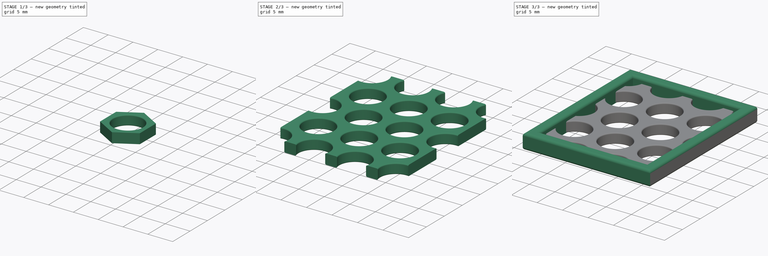
[diagram: build sequence overview — one tinted view per stage of 3, left to right]
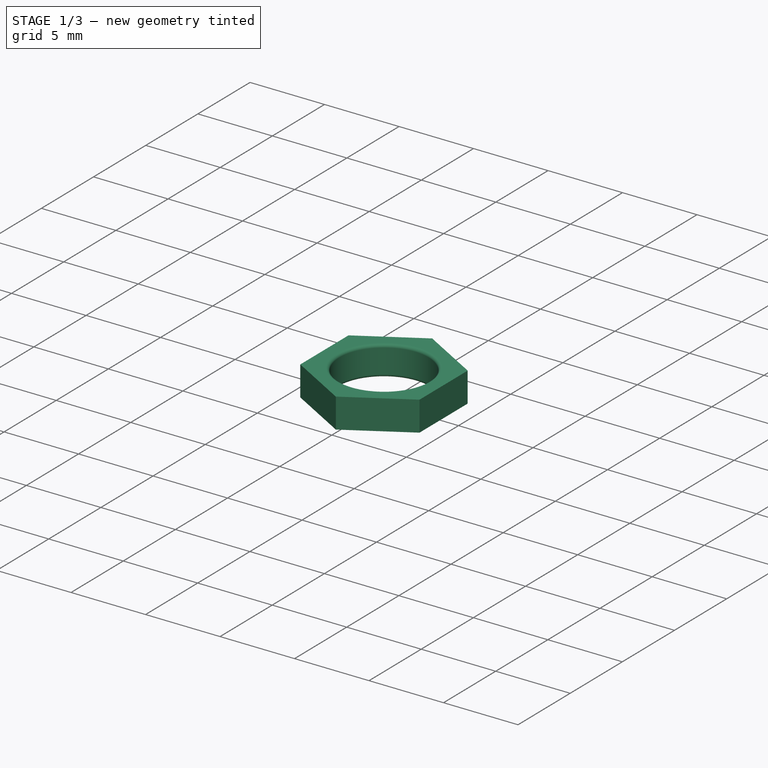
[diagram: stage 1 of 3 — iso view after this stage's code; geometry added in this stage tinted green]
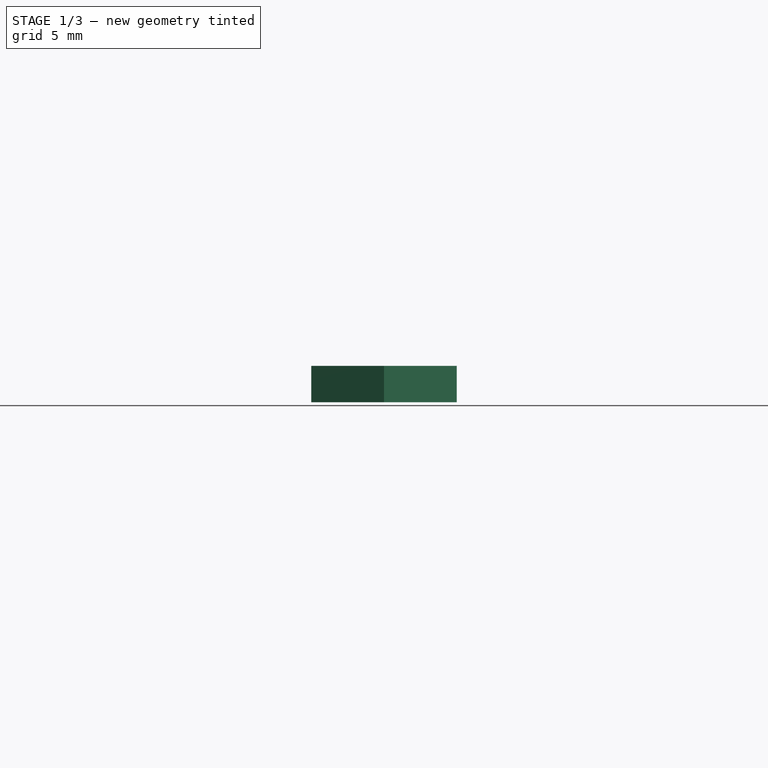
[diagram: stage 1 of 3 — front view after this stage's code; geometry added in this stage tinted green]
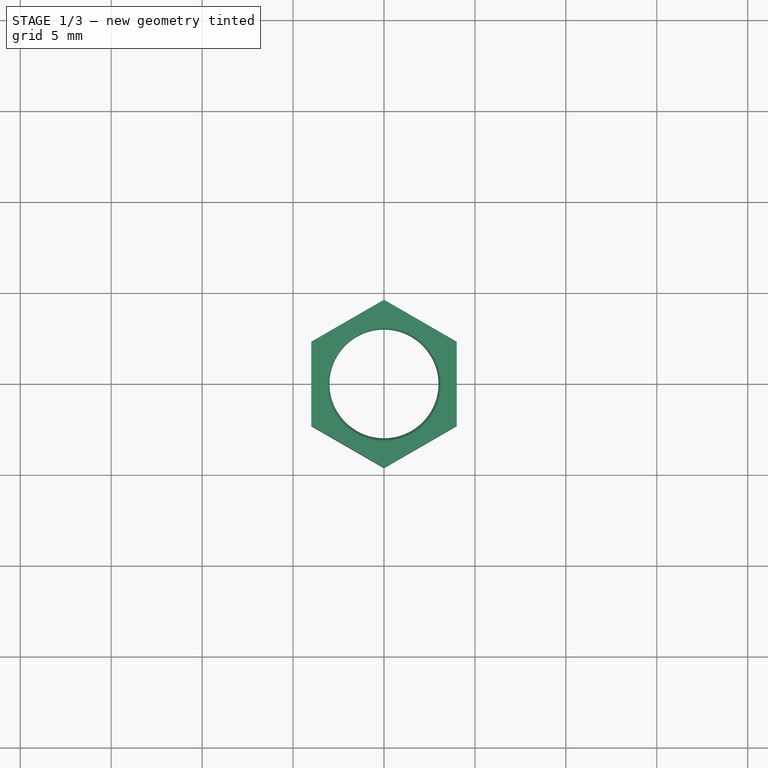
[diagram: stage 1 of 3 — top view after this stage's code; geometry added in this stage tinted green]
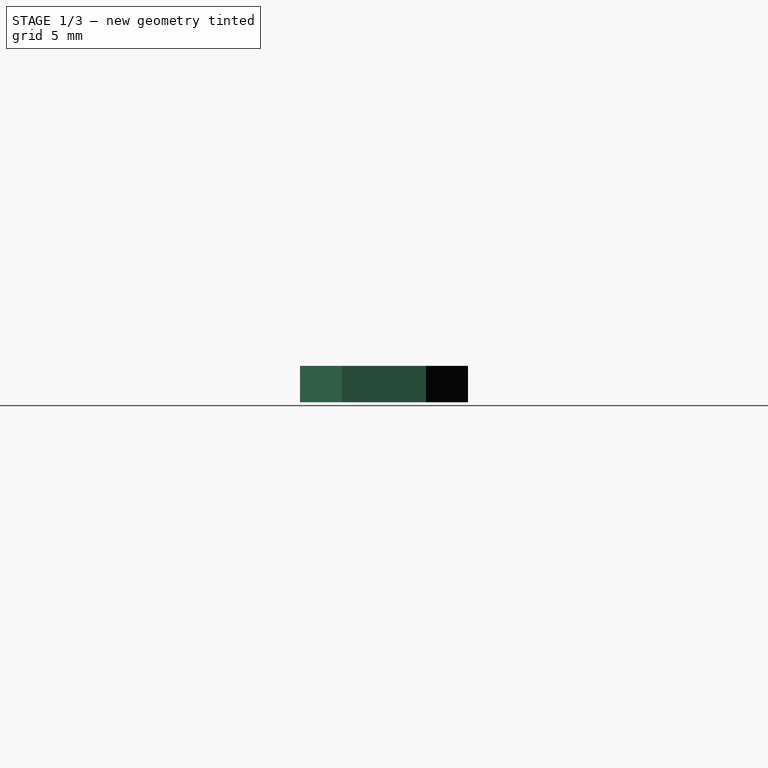
[diagram: stage 1 of 3 — right view after this stage's code; geometry added in this stage tinted green]
FCSTD DOCUMENT  (FreeCAD 0.20R27319 (Git))
Label: Failed Intersection_SHALM_fixed
License: All rights reserved
LicenseURL: http://en.wikipedia.org/wiki/All_rights_reserved
objects: Sketcher::SketchObject×3, PartDesign::Pad×2, PartDesign::Fillet×2, PartDesign::LinearPattern×2, Spreadsheet::Sheet×1, PartDesign::Mirrored×1, PartDesign::MultiTransform×1, PartDesign::Pocket×1, PartDesign::Body×1
note: 18 computed .brp shape members not serialized (recipe doc carries the construction recipe); baked Part::Feature solids carry a one-line shape summary decoded from their .brp

FEATURE [Spreadsheet::Sheet] Spreadsheet
  cells = A1=ControlDimension; B1(ControlDimension)=8; A2=X_Repeat; B2(X_Repeat)=5; A3=Y_Repeat; B3(Y_Repeat)=3; A4=Wall Thickness; B4(WallThickness)=2; A5=FilletSize; B5(FilletSize)=4; A6=Thickness; B6(Thickness)=3
FEATURE [Sketcher::SketchObject] Sketch001
  FullyConstrained = true
  MapMode = 5
  Support = -> [XY_Plane001]
  expr: Constraints[19] = Spreadsheet.ControlDimension
  expr: Constraints[26] = Spreadsheet.WallThickness / 2
  sketch-geometry (10):
    g0: LineSegment StartX=4 StartY=-2.3094 StartZ=0 EndX=4 EndY=2.3094 EndZ=0
    g1: LineSegment StartX=4 StartY=2.3094 StartZ=0 EndX=0 EndY=4.6188 EndZ=0
    g2: LineSegment StartX=0 StartY=4.6188 StartZ=0 EndX=-4 EndY=2.3094 EndZ=0
    g3: LineSegment StartX=-4 StartY=2.3094 StartZ=0 EndX=-4 EndY=-2.3094 EndZ=0
    g4: LineSegment StartX=-4 StartY=-2.3094 StartZ=0 EndX=0 EndY=-4.6188 EndZ=0
    g5: LineSegment StartX=0 StartY=-4.6188 StartZ=0 EndX=4 EndY=-2.3094 EndZ=0
    g6: Circle CenterX=0 CenterY=0 CenterZ=0 NormalX=0 NormalY=0 NormalZ=1 AngleXU=0 Radius=4.6188
    g7: Circle CenterX=0 CenterY=0 CenterZ=0 NormalX=0 NormalY=0 NormalZ=1 AngleXU=0 Radius=3
    g8: LineSegment StartX=0 StartY=0 StartZ=0 EndX=2 EndY=3.4641 EndZ=0
    g9: GeomPoint X=3 Y=0 Z=0
  constraints (26):
    c: Coincident(g0,g1)
    c: Coincident(g1,g2)
    c: Coincident(g2,g3)
    c: Coincident(g3,g4)
    c: Coincident(g4,g5)
    c: Coincident(g5,g0)
    c: Equal(g0, g1-g5) x5
    c: PointOnObject(g0,g6)
    c: PointOnObject(g1,g6)
    c: PointOnObject(g2,g6)
    c: PointOnObject(g3,g6)
    c: PointOnObject(g4,g6)
    c: PointOnObject(g5,g6)
    c: Coincident(g6,g-1)
    c: PointOnObject(g1,g-2)
    c: DistanceX(g2,g0) = 8
    c: Coincident(g7,g6)
    c: Coincident(g8,g7)
    c: PointOnObject(g8,g1)
    c: Perpendicular(g8,g1)
    c: PointOnObject(g9,g7)
    c: PointOnObject(g9,g-1)
    c: Distance(g9,g0) = 1
    c: DistanceY(g3,g1) = 6.9282
    c: DistanceY(g2) = 2.3094
    c: DistanceY(g2,g1) = 2.3094
FEATURE [PartDesign::Pad] Pad001  label="Hex Basic"
  Direction = (0,0,1)
  Length = 2
  Length2 = 10
  Profile = -> Sketch001
  ReferenceAxis = -> Sketch001 [N_Axis]
  Type = 0
  expr: Length = Spreadsheet.Thickness - 1
FEATURE [PartDesign::Fillet] Fillet  label="Hex Filleted"
  Base = -> Pad001 [Edge20,Edge21]
  BaseFeature = -> Pad001
  Radius = 0.2
  SupportTransform = false
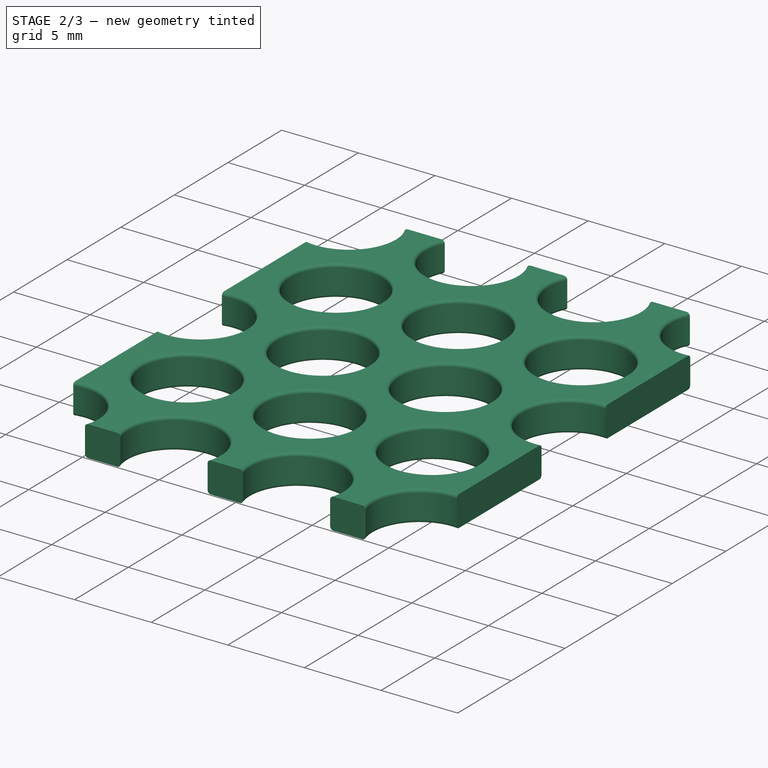
[diagram: stage 2 of 3 — iso view after this stage's code; geometry added in this stage tinted green]
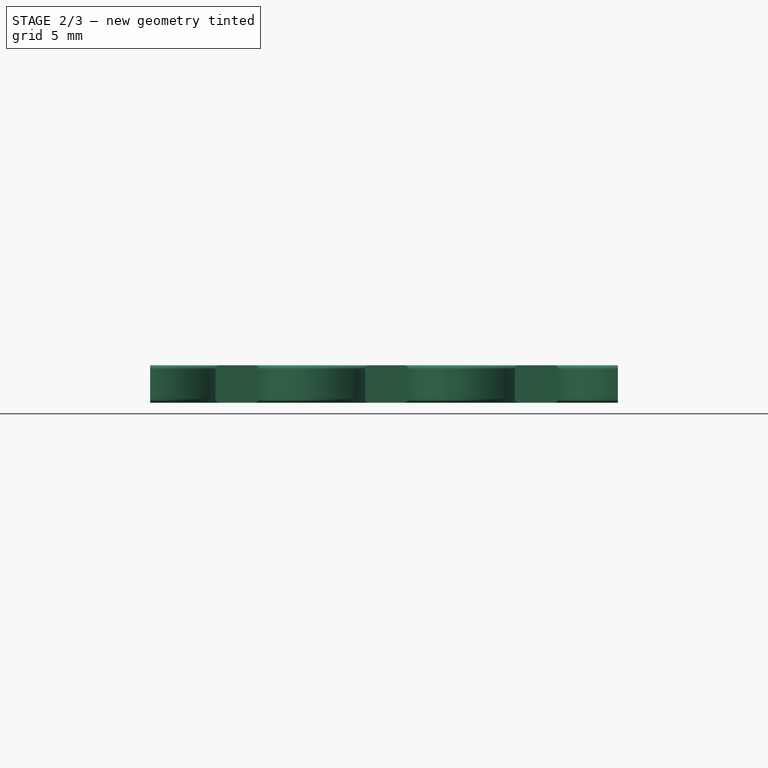
[diagram: stage 2 of 3 — front view after this stage's code; geometry added in this stage tinted green]
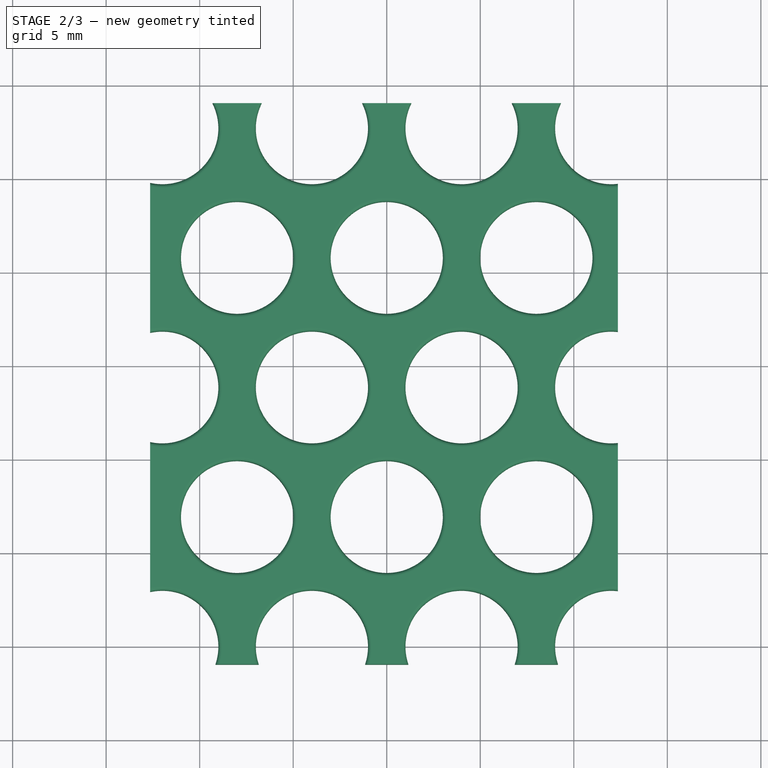
[diagram: stage 2 of 3 — top view after this stage's code; geometry added in this stage tinted green]
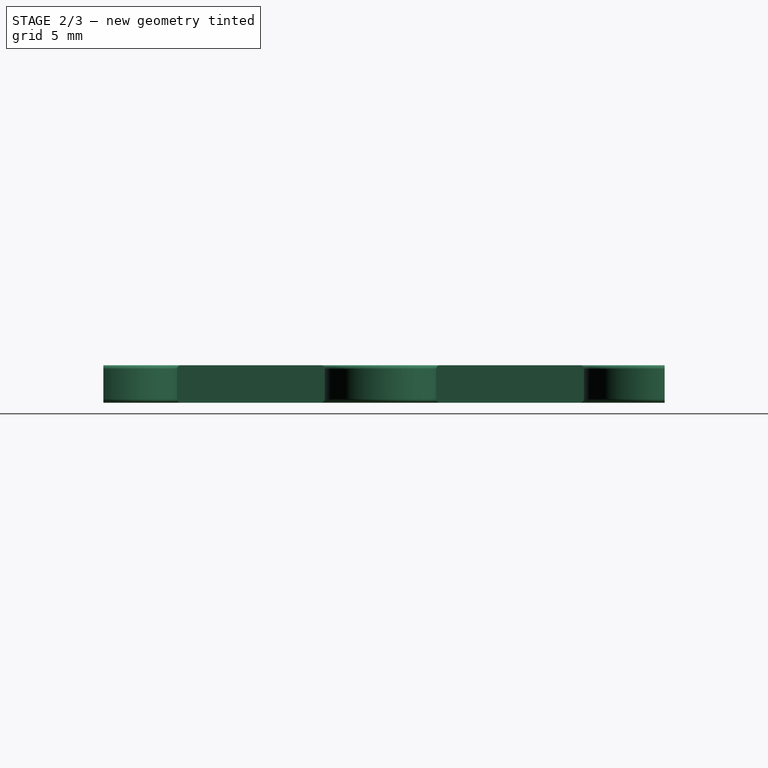
[diagram: stage 2 of 3 — right view after this stage's code; geometry added in this stage tinted green]
FEATURE [Sketcher::SketchObject] Sketch003
  FullyConstrained = false
  MapMode = 5
  Support = -> [XY_Plane001]
  sketch-geometry (10):
    g0: LineSegment StartX=7.3536 StartY=-0.953285 StartZ=0 EndX=7.3536 EndY=29.0467 EndZ=0
    g1: LineSegment StartX=7.3536 StartY=29.0467 StartZ=0 EndX=32.3536 EndY=29.0467 EndZ=0
    g2: LineSegment StartX=32.3536 StartY=29.0467 StartZ=0 EndX=32.3536 EndY=-0.953285 EndZ=0
    g3: LineSegment StartX=32.3536 StartY=-0.953285 StartZ=0 EndX=7.3536 EndY=-0.953285 EndZ=0
    g4: GeomPoint X=19.8536 Y=14.0467 Z=0
    g5: LineSegment StartX=-9.97198 StartY=41.0423 StartZ=0 EndX=-9.97198 EndY=-12.9488 EndZ=0
    g6: LineSegment StartX=-9.97198 StartY=-12.9488 StartZ=0 EndX=49.6792 EndY=-12.9488 EndZ=0
    g7: LineSegment StartX=49.6792 StartY=-12.9488 StartZ=0 EndX=49.6792 EndY=41.0423 EndZ=0
    g8: LineSegment StartX=49.6792 StartY=41.0423 StartZ=0 EndX=-9.97198 EndY=41.0423 EndZ=0
    g9: GeomPoint X=19.8536 Y=14.0467 Z=0
  constraints (21):
    c: Coincident(g0,g1)
    c: Coincident(g1,g2)
    c: Coincident(g2,g3)
    c: Coincident(g3,g0)
    c: Horizontal(g1)
    c: Horizontal(g3)
    c: Vertical(g0)
    c: Vertical(g2)
    c: Symmetric(g1,g0,g4)
    c: Distance(g1) = 25
    c: Distance(g2) = 30
    c: Coincident(g5,g6)
    c: Coincident(g6,g7)
    c: Coincident(g7,g8)
    c: Coincident(g8,g5)
    c: Horizontal(g6)
    c: Horizontal(g8)
    c: Vertical(g5)
    c: Vertical(g7)
    c: Symmetric(g6,g5,g9)
    c: Coincident(g9,g4)
FEATURE [Sketcher::SketchObject] Sketch
  ExternalGeometry = -> [Sketch003]
  FullyConstrained = true
  MapMode = 5
  Support = -> [XY_Plane001]
  sketch-geometry (10):
    g0: LineSegment StartX=7.3536 StartY=-0.953285 StartZ=0 EndX=7.3536 EndY=29.0467 EndZ=0
    g1: LineSegment StartX=7.3536 StartY=29.0467 StartZ=0 EndX=32.3536 EndY=29.0467 EndZ=0
    g2: LineSegment StartX=32.3536 StartY=29.0467 StartZ=0 EndX=32.3536 EndY=-0.953285 EndZ=0
    g3: LineSegment StartX=32.3536 StartY=-0.953285 StartZ=0 EndX=7.3536 EndY=-0.953285 EndZ=0
    g4: GeomPoint X=19.8536 Y=14.0467 Z=0
    g5: LineSegment StartX=9.3536 StartY=27.0467 StartZ=0 EndX=9.3536 EndY=1.04671 EndZ=0
    g6: LineSegment StartX=9.3536 StartY=1.04671 StartZ=0 EndX=30.3536 EndY=1.04671 EndZ=0
    g7: LineSegment StartX=30.3536 StartY=1.04671 StartZ=0 EndX=30.3536 EndY=27.0467 EndZ=0
    g8: LineSegment StartX=30.3536 StartY=27.0467 StartZ=0 EndX=9.3536 EndY=27.0467 EndZ=0
    g9: GeomPoint X=19.8536 Y=14.0467 Z=0
  constraints (23):
    c: Coincident(g0,g1)
    c: Coincident(g1,g2)
    c: Coincident(g2,g3)
    c: Coincident(g3,g0)
    c: Horizontal(g1)
    c: Horizontal(g3)
    c: Vertical(g0)
    c: Vertical(g2)
    c: Symmetric(g1,g0,g4)
    c: Coincident(g1,g-3)
    c: Coincident(g0,g-4)
    c: Coincident(g5,g6)
    c: Coincident(g6,g7)
    c: Coincident(g7,g8)
    c: Coincident(g8,g5)
    c: Horizontal(g6)
    c: Horizontal(g8)
    c: Vertical(g5)
    c: Vertical(g7)
    c: Symmetric(g6,g5,g9)
    c: Coincident(g9,g4)
    c: DistanceX(g6,g2) = 2
    c: DistanceY(g2,g6) = 2
FEATURE [PartDesign::LinearPattern] LinearPattern
  Direction = -> X_Axis001
  Length = 32
  Occurrences = 5
  Overlap = 0
  expr: Length = Spreadsheet.ControlDimension * (Spreadsheet.X_Repeat - 1)
  expr: Occurrences = Spreadsheet.X_Repeat
FEATURE [PartDesign::LinearPattern] LinearPattern001
  Direction = -> Y_Axis001
  Length = 27.7128
  Occurrences = 3
  Overlap = 0
  expr: Length = Spreadsheet.ControlDimension * tan(60) * (Spreadsheet.Y_Repeat - 1)
  expr: Occurrences = Spreadsheet.Y_Repeat
FEATURE [PartDesign::Mirrored] Mirrored
  MirrorPlane = -> Fillet [Face11]
  Overlap = 0
FEATURE [PartDesign::MultiTransform] MultiTransform  label="Hex Array"
  BaseFeature = -> Fillet
  Originals = -> [Pad001,Fillet]
  Overlap = 0
  Transformations = -> [Mirrored,LinearPattern,LinearPattern001]
FEATURE [PartDesign::Pocket] Pocket
  BaseFeature = -> MultiTransform
  Direction = (0,0,-1)
  Length = 5
  Length2 = 5
  Profile = -> Sketch003
  ReferenceAxis = -> Sketch003 [N_Axis]
  Reversed = true
  Type = 1
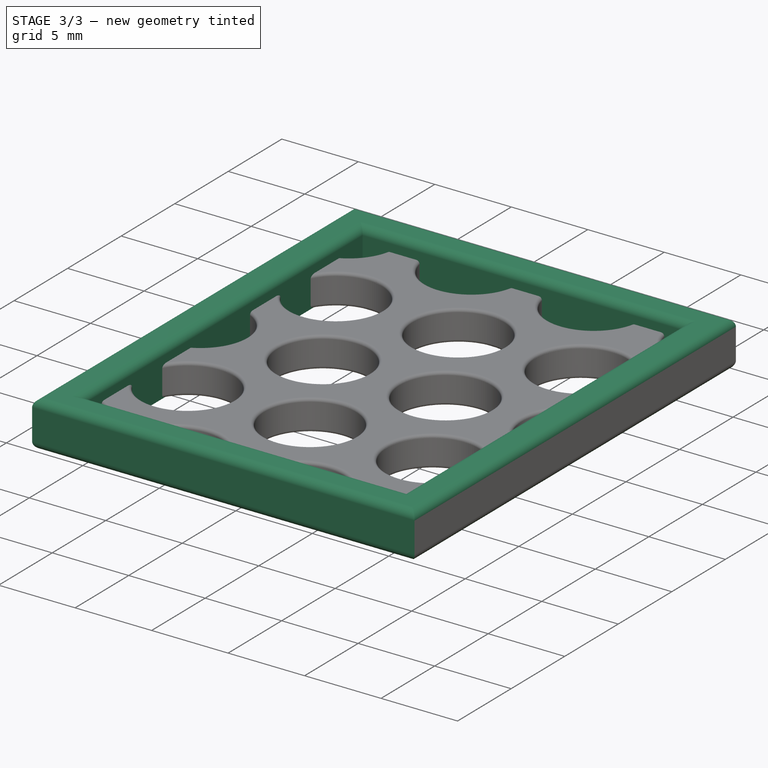
[diagram: stage 3 of 3 — iso view after this stage's code; geometry added in this stage tinted green]
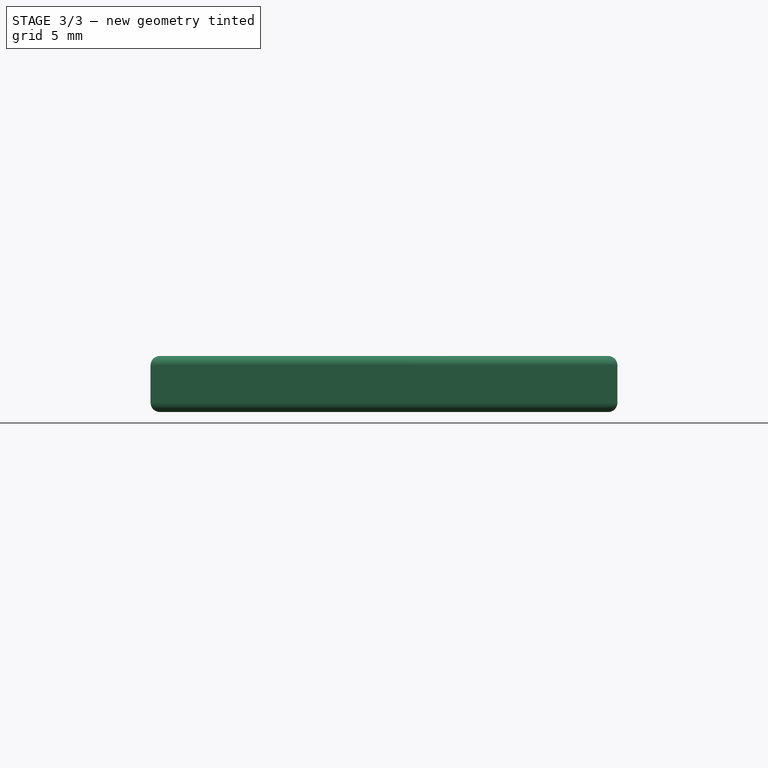
[diagram: stage 3 of 3 — front view after this stage's code; geometry added in this stage tinted green]
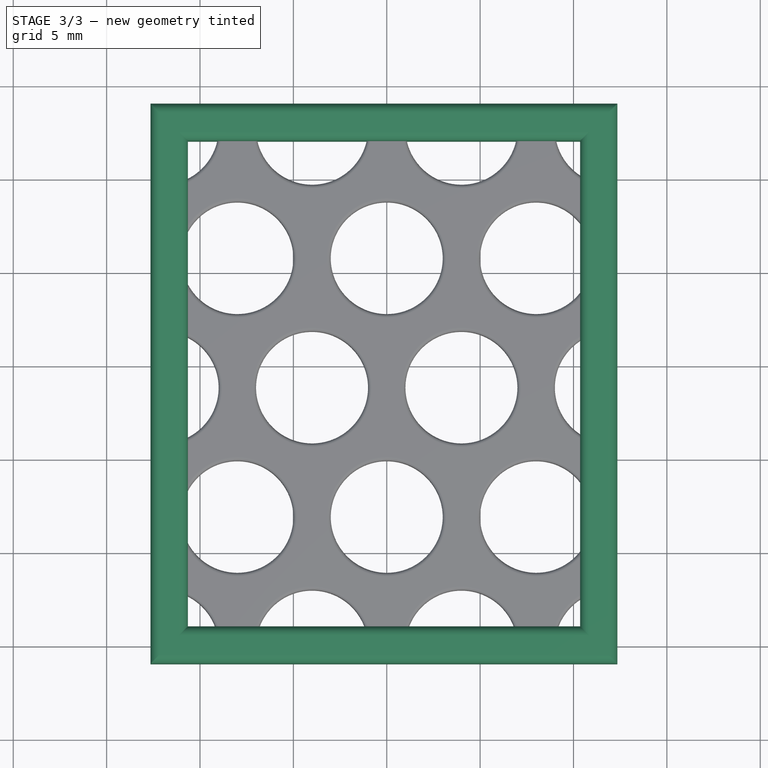
[diagram: stage 3 of 3 — top view after this stage's code; geometry added in this stage tinted green]
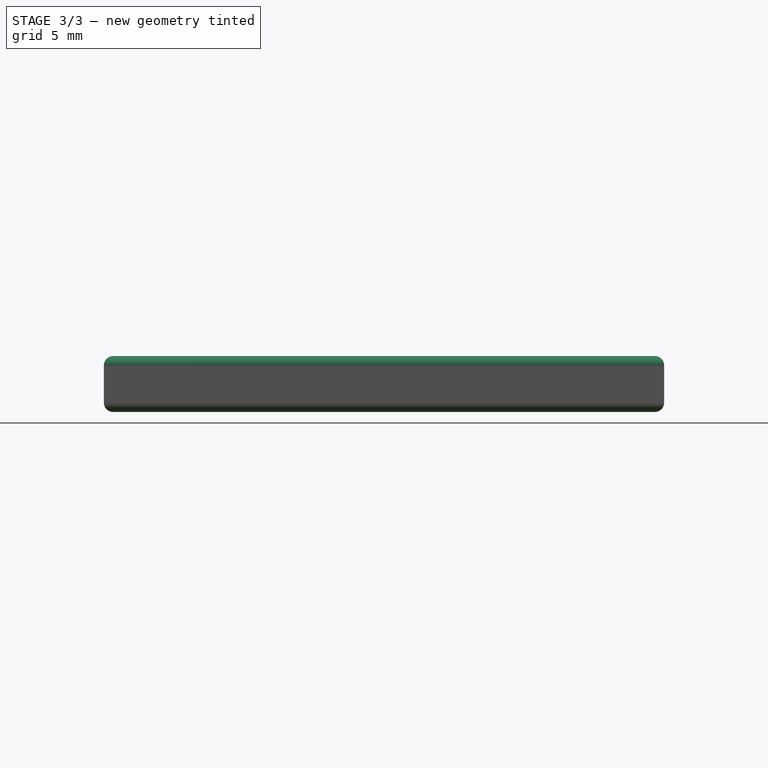
[diagram: stage 3 of 3 — right view after this stage's code; geometry added in this stage tinted green]
FEATURE [PartDesign::Pad] Pad
  BaseFeature = -> Pocket
  Direction = (0,0,1)
  Length = 3
  Length2 = 10
  Profile = -> Sketch
  ReferenceAxis = -> Sketch [N_Axis]
  Refine = true
  Type = 0
  expr: Length = Spreadsheet.Thickness
FEATURE [PartDesign::Fillet] Fillet001
  Base = -> Pad [Edge9,Edge8,Edge11,Edge10,Face17]
  BaseFeature = -> Pad
  Radius = 0.5
  SupportTransform = false
FEATURE [PartDesign::Body] Body001  label="Hex"
  Group = -> [Sketch001,Pad001,Fillet,MultiTransform,Sketch003,Sketch,Mirrored,LinearPattern,LinearPattern001,Pocket,Pad,Fillet001]
  Origin = -> Origin001
  Tip = -> Fillet001
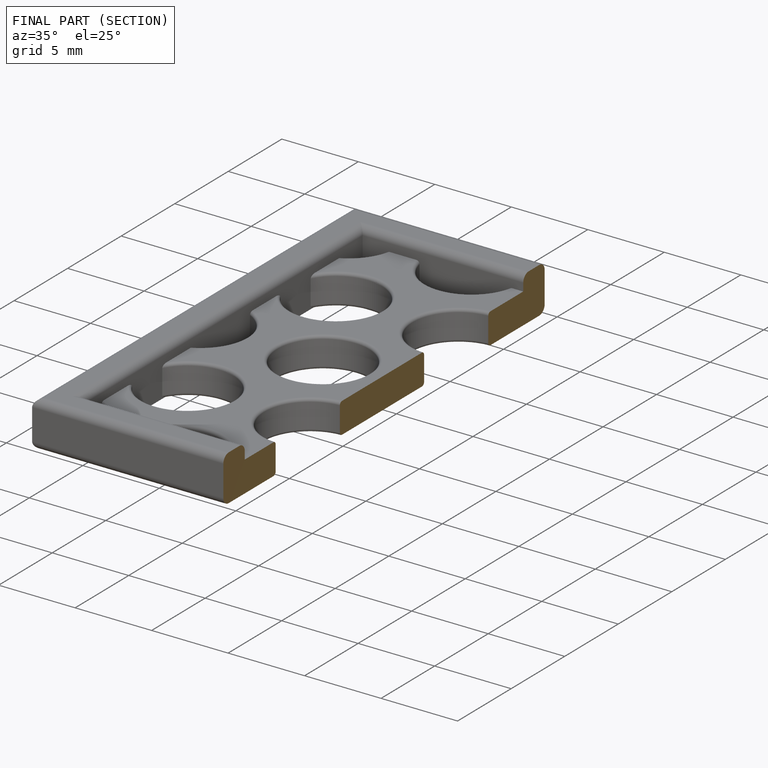
[diagram: finished part — half-section view (interior)]
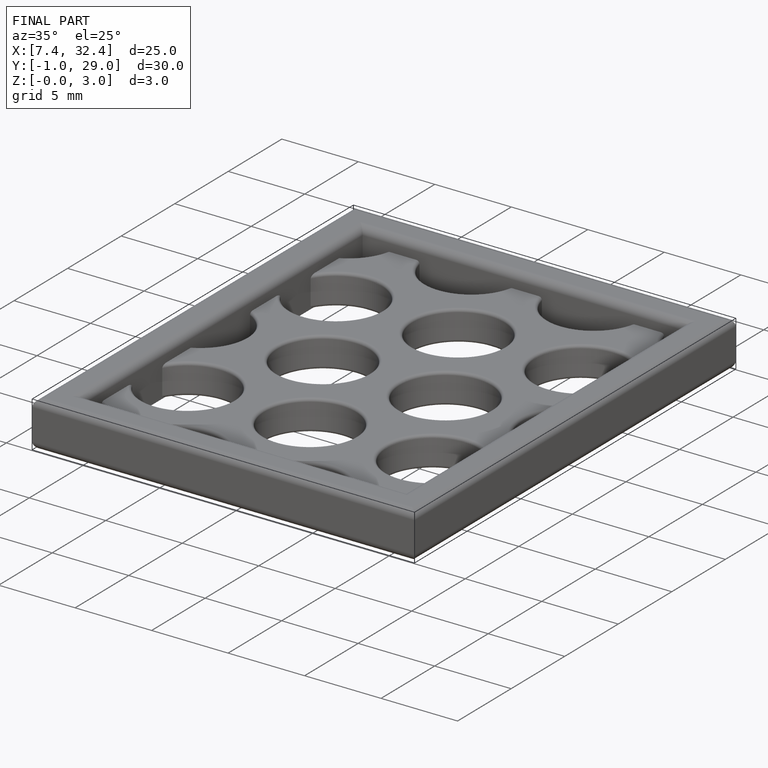
[diagram: finished part — iso view with bounding-box wireframe]
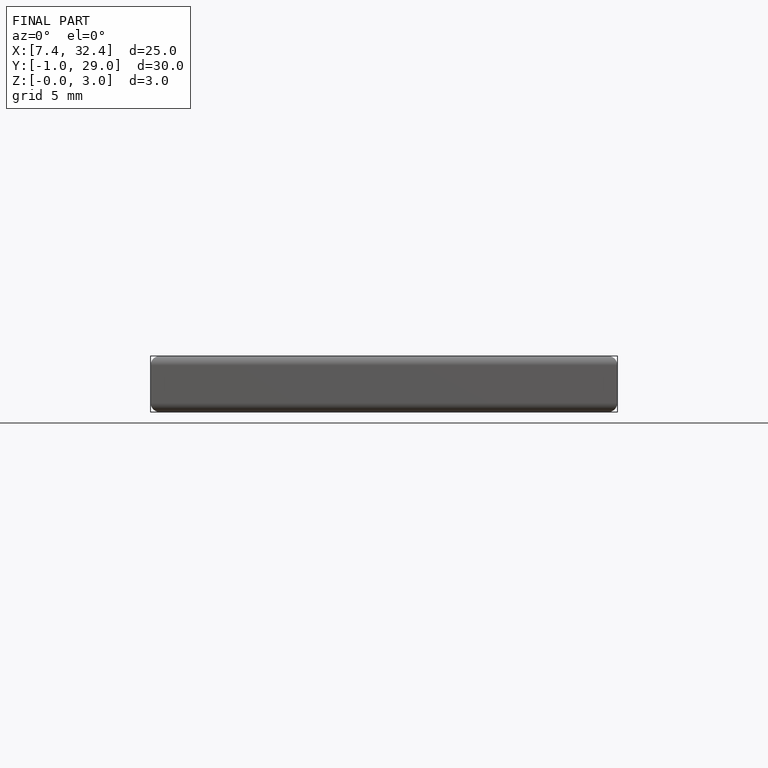
[diagram: finished part — front view with bounding-box wireframe]
